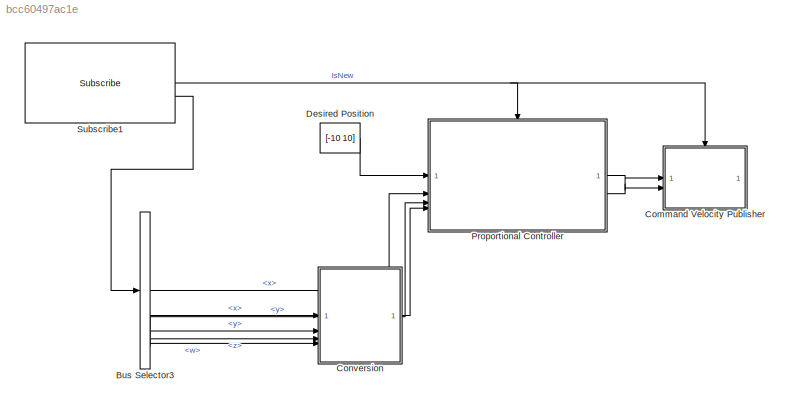
MODEL slx_bcc60497ac1e
KIND model
CONFIG AbsTol = auto
CONFIG EnableMultiTasking = off
CONFIG FixedStep = auto
CONFIG MaxStep = auto
CONFIG MinStep = auto
CONFIG RelTol = 1e-3
CONFIG SampleTimeConstraint = Unconstrained
CONFIG SolverName = FixedStepAuto
CONFIG StartTime = 0.0
CONFIG StopTime = inf
BLOCK [BusSelector] Bus Selector3
  OutputSignals = pose.pose.position.x,pose.pose.position.y,pose.pose.orientation.x,pose.pose.orientation.y,pose.pose.orientation.z,pose.pose.orientation.w
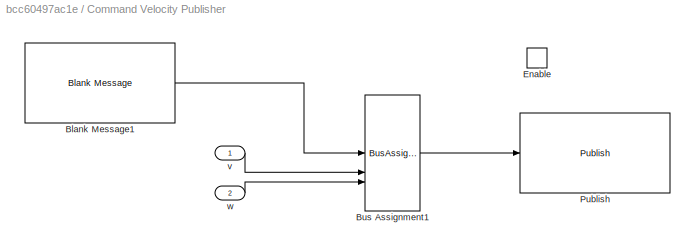
BLOCK [SubSystem] Command Velocity Publisher
BLOCK [Reference] Command Velocity Publisher/Blank Message1  REF=ros2lib/Blank Message  (lib defined in slx_3c1549211f48)
  SourceBlock = ros2lib/Blank Message
  SourceType = ROS2 Blank Message
BLOCK [BusAssignment] Command Velocity Publisher/Bus Assignment1
  AssignedSignals = linear.x,angular.z
  DialogController = Simulink.DDGSource_BusAssignment
BLOCK [EnablePort] Command Velocity Publisher/Enable
BLOCK [Reference] Command Velocity Publisher/Publish  REF=ros2lib/Publish  (lib defined in slx_3c1549211f48)
  SourceBlock = ros2lib/Publish
  SourceType = ROS2 Publish
BLOCK [Inport] Command Velocity Publisher/v
BLOCK [Inport] Command Velocity Publisher/w
  Port = 2
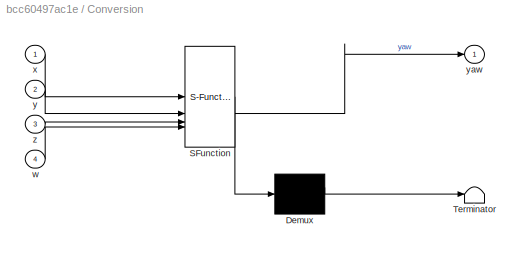
BLOCK [SubSystem] Conversion
  ErrorFcn = Stateflow.Translate.translate
  PermitHierarchicalResolution = ExplicitOnly
  SFBlockType = MATLAB Function
  TreatAsAtomicUnit = on
BLOCK [Demux] Conversion/ Demux 
  Outputs = 1
BLOCK [S-Function] Conversion/ SFunction 
  EnableBusSupport = on
  FunctionName = sf_sfun
  PortCounts = [4 2]
  SFcnIsStateOwnerBlock = off
  SFunctionDeploymentMode = off
  Tag = Stateflow S-Function 1
BLOCK [Terminator] Conversion/ Terminator 
BLOCK [Inport] Conversion/w
  Port = 4
BLOCK [Inport] Conversion/x
BLOCK [Inport] Conversion/y
  Port = 2
BLOCK [Outport] Conversion/yaw
  VectorParamsAs1DForOutWhenUnconnected = off
BLOCK [Inport] Conversion/z
  Port = 3
BLOCK [Constant] Desired Position
  Value = [-10 10]
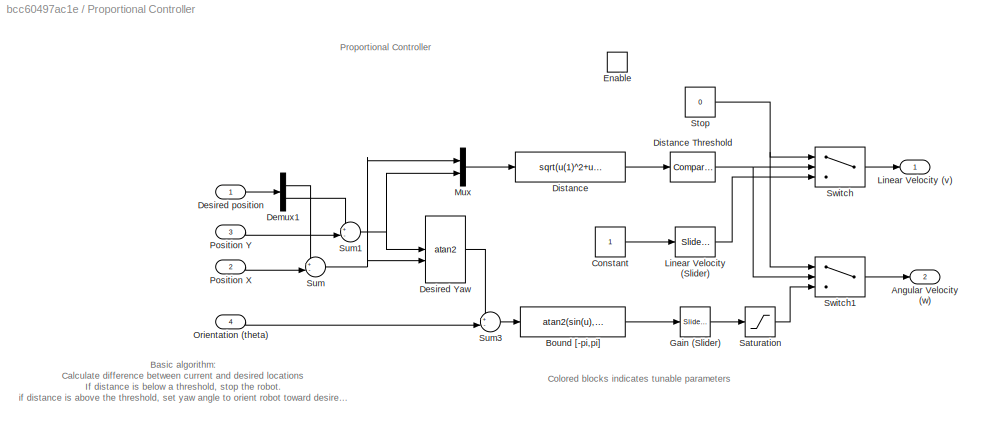
BLOCK [SubSystem] Proportional Controller
BLOCK [Outport] Proportional Controller/Angular Velocity (w)
  Port = 2
  VectorParamsAs1DForOutWhenUnconnected = off
BLOCK [Fcn] Proportional Controller/Bound [-pi,pi]
  Expr = atan2(sin(u),cos(u))
BLOCK [Constant] Proportional Controller/Constant
BLOCK [Demux] Proportional Controller/Demux1
  Outputs = 2
BLOCK [Trigonometry] Proportional Controller/Desired Yaw
  Operator = atan2
BLOCK [Inport] Proportional Controller/Desired position
BLOCK [Fcn] Proportional Controller/Distance
  Expr = sqrt(u(1)^2+u(2)^2)
BLOCK [Reference] Proportional Controller/Distance Threshold  REF=simulink/Logic and Bit
Operations/Compare
To Constant
  SourceBlock = simulink/Logic and Bit\nOperations/Compare\nTo Constant
  SourceType = Compare To Constant
BLOCK [EnablePort] Proportional Controller/Enable
BLOCK [Reference] Proportional Controller/Gain (Slider)  REF=simulink/Math
Operations/Slider
Gain
  SourceBlock = simulink/Math\nOperations/Slider\nGain
  SourceType = Slider Gain
BLOCK [Reference] Proportional Controller/Linear Velocity (Slider)  REF=simulink/Math
Operations/Slider
Gain
  SourceBlock = simulink/Math\nOperations/Slider\nGain
  SourceType = Slider Gain
BLOCK [Outport] Proportional Controller/Linear Velocity (v)
  VectorParamsAs1DForOutWhenUnconnected = off
BLOCK [Mux] Proportional Controller/Mux
  DisplayOption = bar
  Inputs = 2
BLOCK [Inport] Proportional Controller/Orientation (theta)
  Port = 4
BLOCK [Inport] Proportional Controller/Position X
  Port = 2
BLOCK [Inport] Proportional Controller/Position Y
  Port = 3
BLOCK [Saturate] Proportional Controller/Saturation
BLOCK [Constant] Proportional Controller/Stop
  Value = 0
BLOCK [Sum] Proportional Controller/Sum
  Inputs = +-|
BLOCK [Sum] Proportional Controller/Sum1
  Inputs = +-|
BLOCK [Sum] Proportional Controller/Sum3
  Inputs = +-|
BLOCK [Switch] Proportional Controller/Switch
  Criteria = u2 ~= 0
  InputSameDT = off
  SaturateOnIntegerOverflow = off
BLOCK [Switch] Proportional Controller/Switch1
  Criteria = u2 ~= 0
  InputSameDT = off
  SaturateOnIntegerOverflow = off
BLOCK [Reference] Subscribe1  REF=ros2lib/Subscribe  (lib defined in slx_3c1549211f48)
  SourceBlock = ros2lib/Subscribe
  SourceType = ROS2 Subscribe
ANNOTATION Proportional Controller: Proportional Controller
ANNOTATION Proportional Controller: Colored blocks indicates tunable parameters
ANNOTATION Proportional Controller: Basic algorithm: Calculate difference between current and desired locations If distance is below a threshold, stop the robot. if distance is above the threshold, set yaw angle to orient robot toward desired location, and drive towards it.
LINE Bus Selector3:1 -> Proportional Controller:2
LINE Bus Selector3:2 -> Proportional Controller:3
LINE Bus Selector3:3 -> Conversion:1
LINE Bus Selector3:4 -> Conversion:2
LINE Bus Selector3:5 -> Conversion:3
LINE Bus Selector3:6 -> Conversion:4
LINE Command Velocity Publisher/Blank Message1:1 -> Command Velocity Publisher/Bus Assignment1:1
LINE Command Velocity Publisher/Bus Assignment1:1 -> Command Velocity Publisher/Publish:1
LINE Command Velocity Publisher/v:1 -> Command Velocity Publisher/Bus Assignment1:2
LINE Command Velocity Publisher/w:1 -> Command Velocity Publisher/Bus Assignment1:3
LINE Conversion:1 -> Proportional Controller:4
LINE Desired Position:1 -> Proportional Controller:1
LINE Proportional Controller/Bound [-pi,pi]:1 -> Proportional Controller/Gain (Slider):1
LINE Proportional Controller/Constant:1 -> Proportional Controller/Linear Velocity (Slider):1
LINE Proportional Controller/Demux1:1 -> Proportional Controller/Sum:1
LINE Proportional Controller/Demux1:2 -> Proportional Controller/Sum1:1
LINE Proportional Controller/Desired Yaw:1 -> Proportional Controller/Sum3:1
LINE Proportional Controller/Desired position:1 -> Proportional Controller/Demux1:1
NET Proportional Controller/Distance Threshold:1 -> Proportional Controller/Switch1:2, Proportional Controller/Switch:2
LINE Proportional Controller/Distance:1 -> Proportional Controller/Distance Threshold:1
LINE Proportional Controller/Gain (Slider):1 -> Proportional Controller/Saturation:1
LINE Proportional Controller/Linear Velocity (Slider):1 -> Proportional Controller/Switch:3
LINE Proportional Controller/Mux:1 -> Proportional Controller/Distance:1
LINE Proportional Controller/Orientation (theta):1 -> Proportional Controller/Sum3:2
LINE Proportional Controller/Position X:1 -> Proportional Controller/Sum:2
LINE Proportional Controller/Position Y:1 -> Proportional Controller/Sum1:2
LINE Proportional Controller/Saturation:1 -> Proportional Controller/Switch1:3
NET Proportional Controller/Stop:1 -> Proportional Controller/Switch1:1, Proportional Controller/Switch:1
NET Proportional Controller/Sum1:1 -> Proportional Controller/Desired Yaw:1, Proportional Controller/Mux:2
LINE Proportional Controller/Sum3:1 -> Proportional Controller/Bound [-pi,pi]:1
NET Proportional Controller/Sum:1 -> Proportional Controller/Desired Yaw:2, Proportional Controller/Mux:1
LINE Proportional Controller/Switch1:1 -> Proportional Controller/Angular Velocity (w):1
LINE Proportional Controller/Switch:1 -> Proportional Controller/Linear Velocity (v):1
LINE Proportional Controller:1 -> Command Velocity Publisher:1
LINE Proportional Controller:2 -> Command Velocity Publisher:2
NET Subscribe1:1 -> Command Velocity Publisher:enable, Proportional Controller:enable
LINE Subscribe1:2 -> Bus Selector3:1
note: NET lines group one-source signal fan-out (src -> all destinations, sorted); 1:1 wires keep LINE
CHART Conversion states=1 transitions=1
  STATE_LABEL 'eML_blk_kernel()'
  STATE_LABEL 'SCRIPT:\nfunction yaw  = quat2eul(x,y,z,w)\n%#codegen\n\n% Convert the quaternion to a yaw angle (zyx euler angle)\neul = quat2eul([w,x,y,z]);\nyaw = eul(1);\n\nend\n\n'
CHART  states=0 transitions=0
